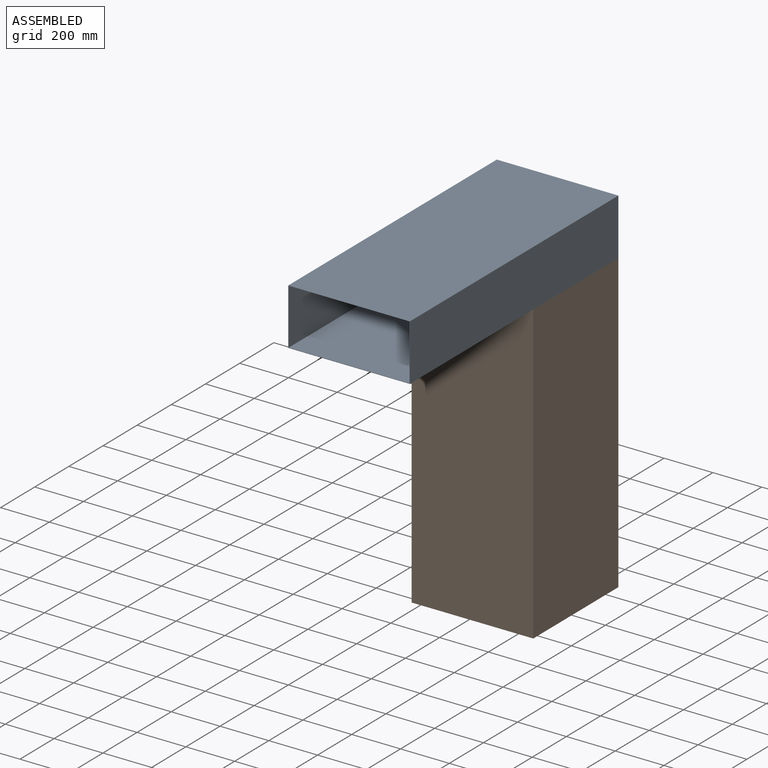
[diagram: assembled view]
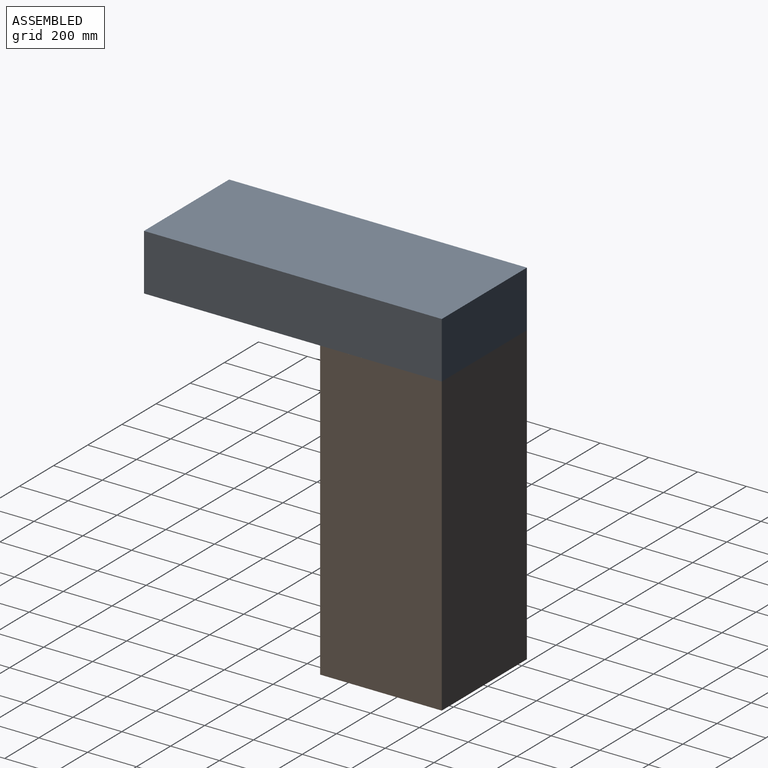
[diagram: assembled view, second angle]
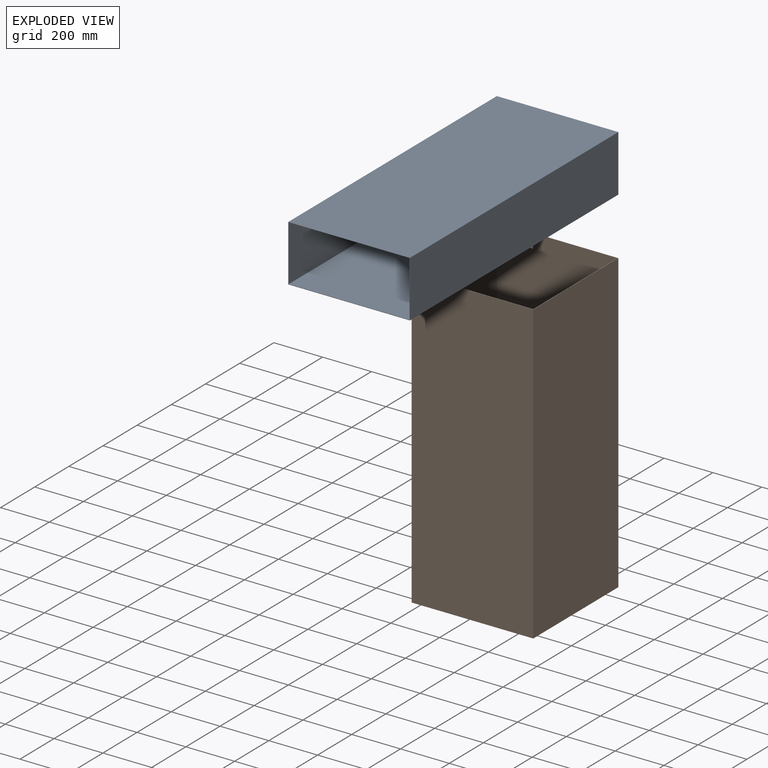
[diagram: exploded view]
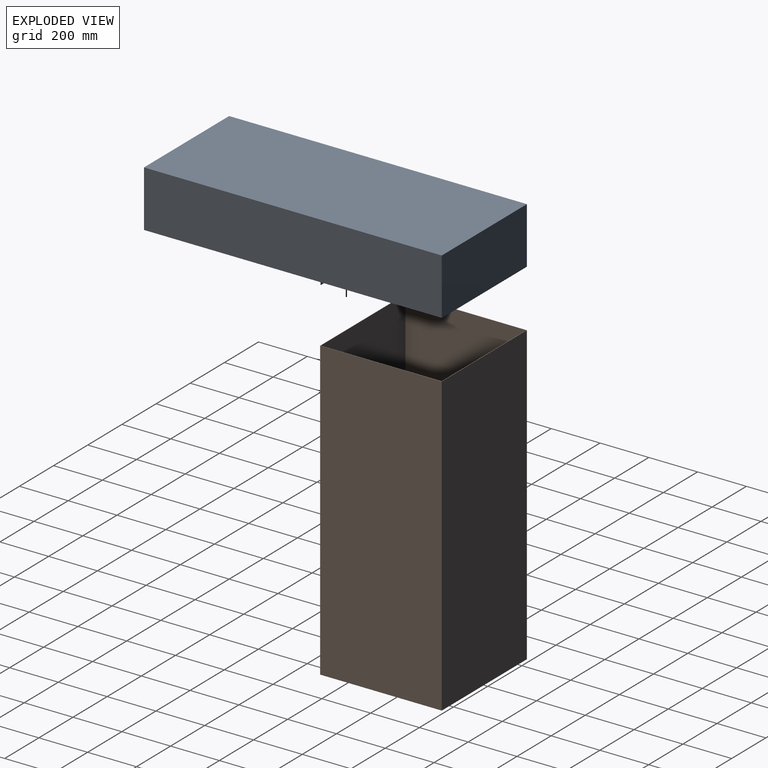
[diagram: exploded view, second angle]
ASSEMBLY  parts=2 mates=3
PART A: 16 faces, bbox 498.5x1220.8x242.9 mm
  f0: plane 723.9x495.3mm, normal (0,0,1), area 358547.7mm2, adj f2,f7,f8,f11
  f1: plane 1220.79x498.48mm, normal (0,0,-1), area 362423.7mm2, adj f2,f3,f4,f6,f7,f8,f10,f12
  f2: plane 498.48x231.78mm, normal (0,-1,0), area 2308.5mm2, adj f0,f1,f3,f4,f5,f7,f8,f9
  f3: plane 1220.79x231.78mm, normal (-1,0,0), area 282948mm2, adj f1,f2,f5,f6
  f4: plane 1220.79x231.78mm, normal (1,0,0), area 282948mm2, adj f1,f2,f5,f6
  f5: plane 1220.79x498.48mm, normal (0,0,1), area 608532mm2, adj f2,f3,f4,f6
  f6: plane 498.48x231.78mm, normal (0,1,0), area 115534mm2, adj f1,f3,f4,f5
  f7: plane 1219.2x230.19mm, normal (1,0,0), area 279495.4mm2, adj f0,f1,f2,f9,f10,f11
  f8: plane 1219.2x230.19mm, normal (-1,0,0), area 279495.4mm2, adj f0,f1,f2,f9,f10,f11
  f9: plane 1219.2x495.3mm, normal (0,0,-1), area 603869.8mm2, adj f2,f7,f8,f10
  f10: plane 495.3x230.19mm, normal (0,-1,0), area 114011.9mm2, adj f1,f7,f8,f9
  f11: plane 495.3x12.7mm, normal (0,1,0), area 6290.3mm2, adj f0,f7,f8,f12,f13,f14
  f12: plane 11.11x1.59mm, normal (1,0,0), area 17.6mm2, adj f1,f11,f13,f15
  f13: plane 495.3x1.59mm, normal (0,0,-1), area 786.3mm2, adj f11,f12,f14,f15
  f14: plane 11.11x1.59mm, normal (-1,0,0), area 17.6mm2, adj f1,f11,f13,f15
  f15: plane 495.3x11.11mm, normal (0,-1,0), area 5504mm2, adj f1,f12,f13,f14
PART B: 10 faces, bbox 498.5x498.5x1219.2 mm
  f0: plane 498.48x498.48mm, normal (0,0,1), area 3155.2mm2, adj f2,f3,f4,f5,f6,f7,f8,f9
  f1: plane 498.48x498.48mm, normal (0,0,-1), area 3155.2mm2, adj f2,f3,f4,f5,f6,f7,f8,f9
  f2: plane 1219.2x498.48mm, normal (-1,0,0), area 607740.7mm2, adj f0,f1,f3,f5
  f3: plane 1219.2x498.48mm, normal (0,-1,0), area 607740.7mm2, adj f0,f1,f2,f4
  f4: plane 1219.2x498.48mm, normal (1,0,0), area 607740.7mm2, adj f0,f1,f3,f5
  f5: plane 1219.2x498.48mm, normal (0,1,0), area 607740.7mm2, adj f0,f1,f2,f4
  f6: plane 1219.2x495.3mm, normal (1,0,0), area 603869.8mm2, adj f0,f1,f7,f9
  f7: plane 1219.2x495.3mm, normal (0,1,0), area 603869.8mm2, adj f0,f1,f6,f8
  f8: plane 1219.2x495.3mm, normal (-1,0,0), area 603869.8mm2, adj f0,f1,f7,f9
  f9: plane 1219.2x495.3mm, normal (0,-1,0), area 603869.8mm2, adj f0,f1,f6,f8
PLACE A t=(1.59,0,1.59)mm
PLACE B t=(1.59,723.9,-1219.2)mm
MATE planar B.f4 <-> A.f4  axis (1,0,0) through (498.48,971.55,-609.6)mm
MATE planar A.f1 <-> B.f0  axis (0,0,-1) through (249.24,365.69,0)mm
MATE planar B.f5 <-> A.f6  axis (0,1,0) through (249.24,1220.79,-609.6)mm
